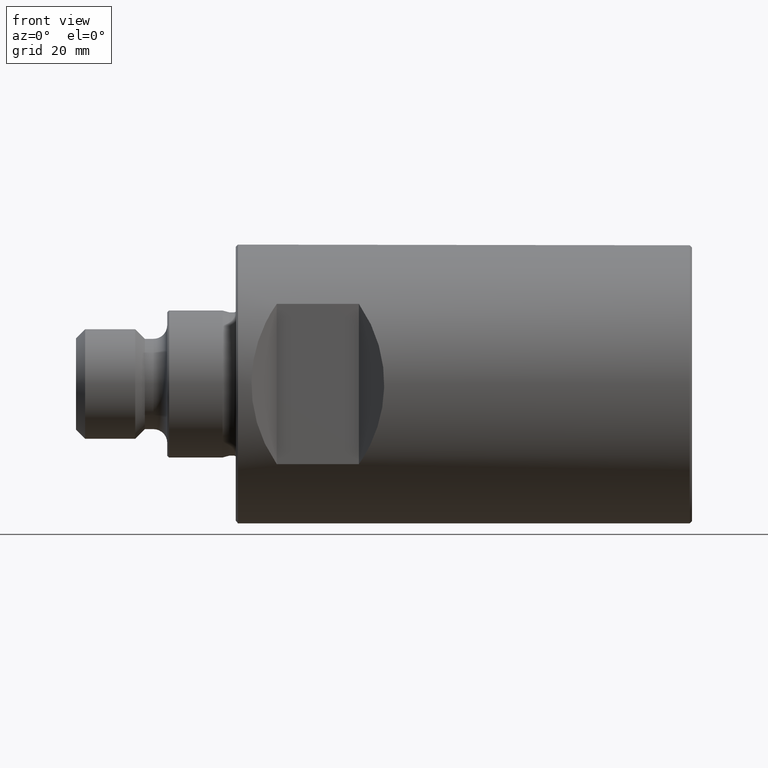
[diagram: clean part render]
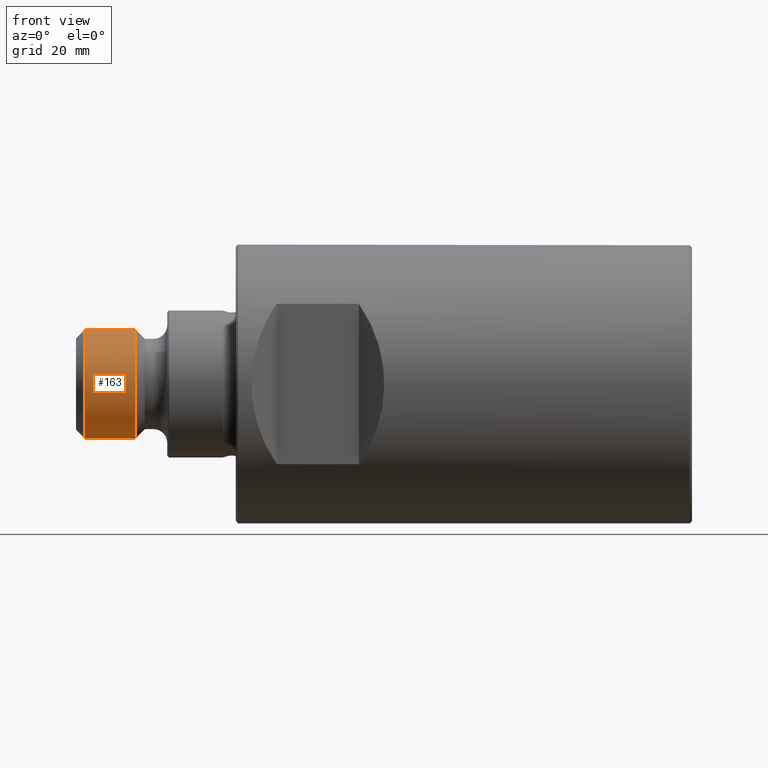
[diagram: same view with one face highlighted and labeled with its STEP entity id]
A machine part, front view. The second image highlights one B-rep face of the part: STEP entity #163.
In plain terms, the highlighted cylindrical surface (bore or boss wall) has radius 12 mm, axis along (1, -0, -0).
Its self-contained STEP definition (entity closure, byte-faithful):
#7 = EDGE_LOOP ( 'NONE', ( #871 ) ) ;
#30 = CYLINDRICAL_SURFACE ( 'NONE', #454, 11.99999999999998600 ) ;
#103 = FACE_OUTER_BOUND ( 'NONE', #461, .T. ) ;
#124 = DIRECTION ( 'NONE',  ( 1.000000000000000000, -0.0000000000000000000, -0.0000000000000000000 ) ) ;
#138 = DIRECTION ( 'NONE',  ( 1.000000000000000000, -0.0000000000000000000, -0.0000000000000000000 ) ) ;
#163 = ADVANCED_FACE ( 'NONE', ( #387, #103 ), #30, .T. ) ;
#205 = CARTESIAN_POINT ( 'NONE',  ( -133.0000000000000000, 0.0000000000000000000, -11.99999999999998400 ) ) ;
#387 = FACE_OUTER_BOUND ( 'NONE', #7, .T. ) ;
#414 = VERTEX_POINT ( 'NONE', #205 ) ;
#430 = AXIS2_PLACEMENT_3D ( 'NONE', #572, #124, #642 ) ;
#454 = AXIS2_PLACEMENT_3D ( 'NONE', #836, #539, #726 ) ;
#461 = EDGE_LOOP ( 'NONE', ( #781 ) ) ;
#509 = EDGE_CURVE ( 'NONE', #414, #414, #594, .T. ) ;
#539 = DIRECTION ( 'NONE',  ( 1.000000000000000000, -0.0000000000000000000, -0.0000000000000000000 ) ) ;
#544 = CARTESIAN_POINT ( 'NONE',  ( -122.0000000000000100, 0.0000000000000000000, -11.99999999999998600 ) ) ;
#572 = CARTESIAN_POINT ( 'NONE',  ( -122.0000000000000100, 0.0000000000000000000, 0.0000000000000000000 ) ) ;
#583 = CARTESIAN_POINT ( 'NONE',  ( -133.0000000000000000, 0.0000000000000000000, 0.0000000000000000000 ) ) ;
#594 = CIRCLE ( 'NONE', #903, 11.99999999999998400 ) ;
#610 = VERTEX_POINT ( 'NONE', #544 ) ;
#642 = DIRECTION ( 'NONE',  ( 0.0000000000000000000, 0.0000000000000000000, -1.000000000000000000 ) ) ;
#655 = DIRECTION ( 'NONE',  ( 0.0000000000000000000, 0.0000000000000000000, -1.000000000000000000 ) ) ;
#726 = DIRECTION ( 'NONE',  ( 0.0000000000000000000, 0.0000000000000000000, -1.000000000000000000 ) ) ;
#742 = CIRCLE ( 'NONE', #430, 11.99999999999998600 ) ;
#780 = EDGE_CURVE ( 'NONE', #610, #610, #742, .T. ) ;
#781 = ORIENTED_EDGE ( 'NONE', *, *, #780, .F. ) ;
#836 = CARTESIAN_POINT ( 'NONE',  ( 0.0000000000000000000, 0.0000000000000000000, 0.0000000000000000000 ) ) ;
#871 = ORIENTED_EDGE ( 'NONE', *, *, #509, .T. ) ;
#903 = AXIS2_PLACEMENT_3D ( 'NONE', #583, #138, #655 ) ;